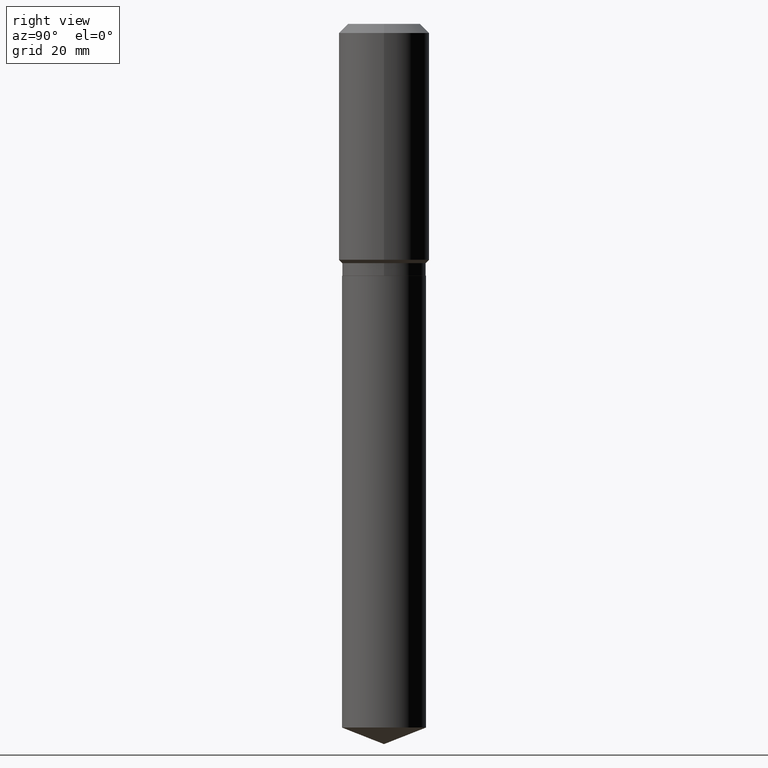
[diagram: clean part render]
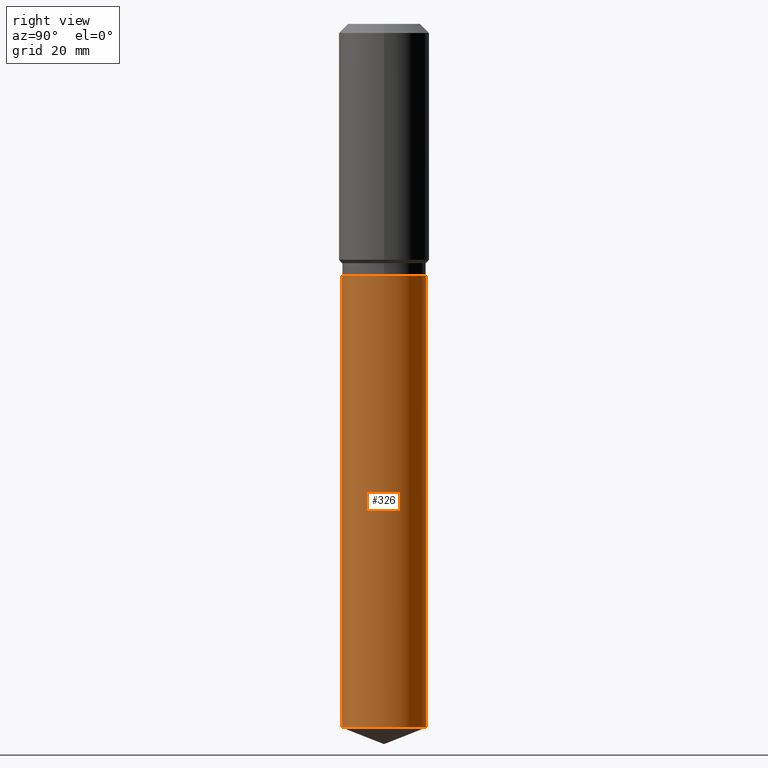
[diagram: same view with one face highlighted and labeled with its STEP entity id]
A machine part, right view. The second image highlights one B-rep face of the part: STEP entity #326.
In plain terms, the highlighted cylindrical surface (partial cylindrical patch) has radius 8.3337 mm, axis along (-0, 0, 1).
Its self-contained STEP definition (entity closure, byte-faithful):
#5 = VERTEX_POINT ( 'NONE', #241 ) ;
#16 = VECTOR ( 'NONE', #138, 39.37007874015748143 ) ;
#33 = ORIENTED_EDGE ( 'NONE', *, *, #180, .F. ) ;
#40 = ORIENTED_EDGE ( 'NONE', *, *, #277, .T. ) ;
#42 = ORIENTED_EDGE ( 'NONE', *, *, #230, .T. ) ;
#44 = CARTESIAN_POINT ( 'NONE',  ( 2.331290716028936061E-15, 0.3280999999999930639, -1.968600000000001016 ) ) ;
#53 = CARTESIAN_POINT ( 'NONE',  ( 2.331290716029022836E-15, 0.3280999999999930639, -1.968600000000001016 ) ) ;
#56 = AXIS2_PLACEMENT_3D ( 'NONE', #293, #445, #108 ) ;
#80 = VERTEX_POINT ( 'NONE', #127 ) ;
#86 = AXIS2_PLACEMENT_3D ( 'NONE', #422, #191, #270 ) ;
#108 = DIRECTION ( 'NONE',  ( -6.982962677686265133E-15, -1.000000000000000000, 3.330506545156066257E-15 ) ) ;
#111 = DIRECTION ( 'NONE',  ( -6.982962677686265133E-15, -1.000000000000000000, 3.330506545156066257E-15 ) ) ;
#127 = CARTESIAN_POINT ( 'NONE',  ( -2.291110054548815599E-15, -0.3281000000000068861, -1.968599999999998795 ) ) ;
#138 = DIRECTION ( 'NONE',  ( -2.445662151041925692E-29, 3.491204458003717662E-15, 1.000000000000000000 ) ) ;
#150 = VECTOR ( 'NONE', #304, 39.37007874015748143 ) ;
#151 = VERTEX_POINT ( 'NONE', #188 ) ;
#180 = EDGE_CURVE ( 'NONE', #80, #324, #192, .T. ) ;
#183 = EDGE_CURVE ( 'NONE', #151, #80, #257, .T. ) ;
#188 = CARTESIAN_POINT ( 'NONE',  ( -2.291110054548728824E-15, -0.3281000000000190986, -5.500757972950736097 ) ) ;
#191 = DIRECTION ( 'NONE',  ( -2.445662151041925692E-29, 3.491204458003717662E-15, 1.000000000000000000 ) ) ;
#192 = CIRCLE ( 'NONE', #56, 0.3281000000000000028 ) ;
#230 = EDGE_CURVE ( 'NONE', #151, #5, #393, .T. ) ;
#241 = CARTESIAN_POINT ( 'NONE',  ( 2.331290716029022441E-15, 0.3280999999999807404, -5.500757972950738761 ) ) ;
#257 = LINE ( 'NONE', #473, #16 ) ;
#267 = LINE ( 'NONE', #44, #150 ) ;
#270 = DIRECTION ( 'NONE',  ( -6.982962677686265133E-15, -1.000000000000000000, 3.330506545156066257E-15 ) ) ;
#277 = EDGE_CURVE ( 'NONE', #5, #324, #267, .T. ) ;
#293 = CARTESIAN_POINT ( 'NONE',  ( 4.814149891856059498E-29, -6.873330163646616008E-15, -1.968599999999999905 ) ) ;
#302 = FACE_OUTER_BOUND ( 'NONE', #340, .T. ) ;
#304 = DIRECTION ( 'NONE',  ( -2.445662151041925692E-29, 3.491204458003717662E-15, 1.000000000000000000 ) ) ;
#324 = VERTEX_POINT ( 'NONE', #53 ) ;
#326 = ADVANCED_FACE ( 'NONE', ( #302 ), #420, .T. ) ;
#340 = EDGE_LOOP ( 'NONE', ( #42, #40, #33, #486 ) ) ;
#393 = CIRCLE ( 'NONE', #448, 0.3281000000000000028 ) ;
#420 = CYLINDRICAL_SURFACE ( 'NONE', #86, 0.3281000000000000028 ) ;
#422 = CARTESIAN_POINT ( 'NONE',  ( 4.814149891856059498E-29, -6.873330163646616008E-15, -1.968599999999999905 ) ) ;
#441 = CARTESIAN_POINT ( 'NONE',  ( 1.345261495780264828E-28, -1.920481582518560901E-14, -5.500757972950737873 ) ) ;
#445 = DIRECTION ( 'NONE',  ( -2.445662151041925692E-29, 3.491204458003717662E-15, 1.000000000000000000 ) ) ;
#448 = AXIS2_PLACEMENT_3D ( 'NONE', #441, #481, #111 ) ;
#473 = CARTESIAN_POINT ( 'NONE',  ( -2.291110054548815599E-15, -0.3281000000000068861, -1.968599999999998795 ) ) ;
#481 = DIRECTION ( 'NONE',  ( -2.445662151041925692E-29, 3.491204458003717662E-15, 1.000000000000000000 ) ) ;
#486 = ORIENTED_EDGE ( 'NONE', *, *, #183, .F. ) ;